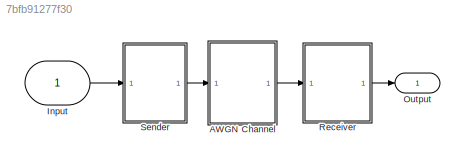
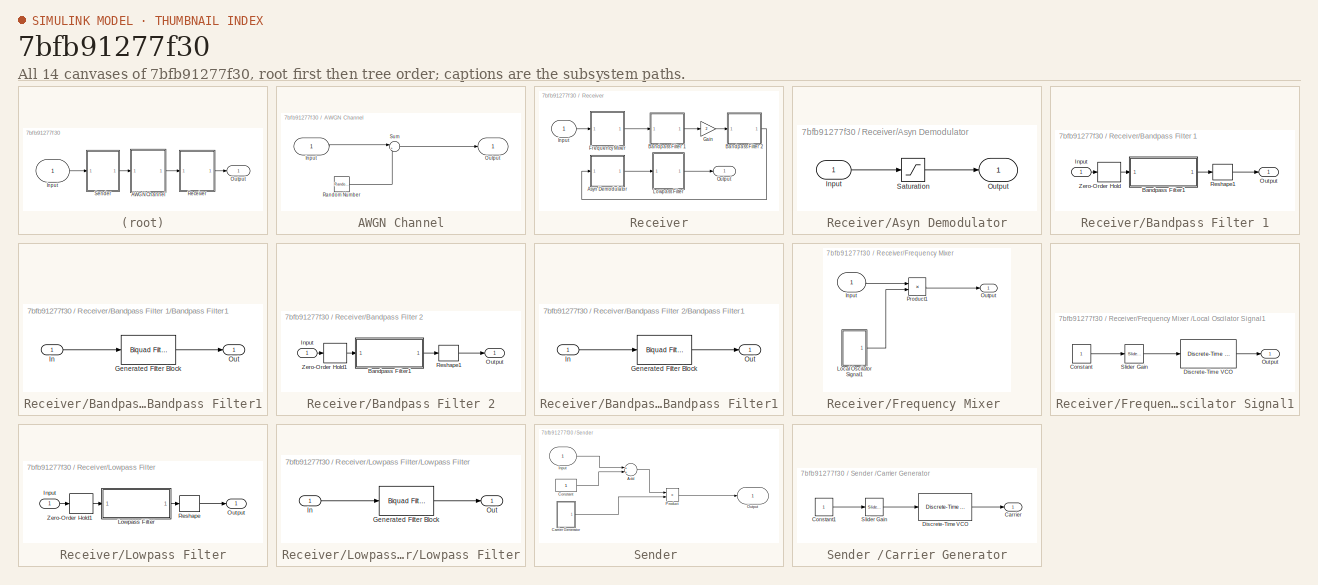
[diagram: thumbnail index - all 14 canvases of the model, root first then tree order]
MODEL slx_7bfb91277f30
KIND model
BLOCK [SubSystem] AWGN Channel
  Ports = [1, 1]
  RequestExecContextInheritance = off
BLOCK [Inport] AWGN Channel/Input
  IconDisplay = Port number
BLOCK [Outport] AWGN Channel/Output
  IconDisplay = Port number
BLOCK [RandomNumber] AWGN Channel/Random Number
  SampleTime = 1/5000000
  Seed = 67
  Variance = 0.01
BLOCK [Sum] AWGN Channel/Sum
  IconShape = round
  InputSameDT = off
  Inputs = |++
  OutDataTypeStr = Inherit: Inherit via internal rule
  Ports = [2, 1]
  SaturateOnIntegerOverflow = off
BLOCK [Inport] Input
  IconDisplay = Port number
BLOCK [Outport] Output
  IconDisplay = Port number
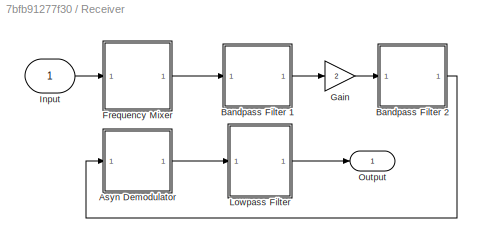
BLOCK [SubSystem] Receiver
  Ports = [1, 1]
  RequestExecContextInheritance = off
BLOCK [SubSystem] Receiver/Asyn Demodulator
  Ports = [1, 1]
  RequestExecContextInheritance = off
BLOCK [Inport] Receiver/Asyn Demodulator/Input
  IconDisplay = Port number
BLOCK [Outport] Receiver/Asyn Demodulator/Output
  IconDisplay = Port number
BLOCK [Saturate] Receiver/Asyn Demodulator/Saturation
  InputPortMap = u0
  LowerLimit = 0
  Ports = [1, 1]
  UpperLimit = inf
BLOCK [SubSystem] Receiver/Bandpass Filter 1
  Ports = [1, 1]
  RequestExecContextInheritance = off
BLOCK [SubSystem] Receiver/Bandpass Filter 1/Bandpass Filter1
  CopyFcn = fdesignblkfcn(gcbh, {'CopyFcn'});
  DialogController = fdesignblkfcn
  InitFcn = fdesignblkfcn(gcbh, {'InitFcn'});
  Ports = [1, 1]
  RequestExecContextInheritance = off
  UserDataPersistent = on
BLOCK [Reference] Receiver/Bandpass Filter 1/Bandpass Filter1/Generated Filter Block  REF=dsparch4/Biquad Filter
  BiQuadCoeffs = [0.01013958648634297 0 -0.01013958648634297 1 -1.6618133812024951 0.98627046054740486;0.0025493781187891492 0 -0.0025493781187891492 1 -1.6514591991218408 0.98607730419032968;0.016304485317952876 0 -0.016304485317952876 1 -1.6744504392878072 0.99677925049276372;0.010019474414157988 0 -0.010019474414157988 1 -1.6562936076737262 0.99669840495107032;0.011567698875754661 0 -0.011567698875754661 1 -1.6...<+297ch>
  CoeffSource = Specify via dialog
  FilterSource = Specify via dialog
  IC = 0
  ICden = 0
  ICnum = 0
  IIRFiltStruct = Direct form II
  InputProcessing = Columns as channels (frame based)
  LockScale = off
  Ports = [1, 1]
  ScaleValueMode = Specify via input port (g)
  ScaleValues = [0.0075209697231768506;1;1;1;1;1;1;1;1]
  SourceBlock = dsparch4/Biquad Filter
  SourceType = Biquad Filter
  Tag = BlockMethodSubSystem
  UserDataPersistent = on
  a0Flag = Warning
  accumFracLength = 30
  accumMode = Same as product output
  accumWordLength = 32
  allowOverrides = on
  denAccumFracLength = 30
  denProdOutputFracLength = 30
  dfiltObjectName = dfilt.df2tsos([1 0.3 0.4],[1 0.1 0.2])
  firstCoeffFracLength = 15
  firstCoeffMode = Same word length as input
  firstCoeffWordLength = 16
  memoryFracLength = 15
  memoryMode = Same as accumulator
  memoryWordLength = 16
  multiplicandFracLength = 30
  multiplicandMode = Same as output
  multiplicandWordLength = 32
  optimizeScaleValues = off
  outputFracLength = 15
  outputMode = Same as accumulator
  outputWordLength = 16
  overflowMode = off
  prodOutputFracLength = 30
  prodOutputMode = Same as input
  prodOutputWordLength = 32
  roundingMode = Floor
  scaleValueFracLength = 14
  secondCoeffFracLength = 15
  secondCoeffMode = Same as numerator
  secondCoeffWordLength = 16
  secondMemoryFracLength = 15
  stageInputFracLength = 15
  stageInputMode = Same as input
  stageInputWordLength = 16
  stageOutputFracLength = 15
  stageOutputMode = Same as section input
  stageOutputWordLength = 16
BLOCK [Inport] Receiver/Bandpass Filter 1/Bandpass Filter1/In
  IconDisplay = Port number
BLOCK [Outport] Receiver/Bandpass Filter 1/Bandpass Filter1/Out
  IconDisplay = Port number
BLOCK [Inport] Receiver/Bandpass Filter 1/Input
  IconDisplay = Port number
BLOCK [Outport] Receiver/Bandpass Filter 1/Output
  IconDisplay = Port number
BLOCK [Reshape] Receiver/Bandpass Filter 1/Reshape1
  Ports = [1, 1]
BLOCK [ZeroOrderHold] Receiver/Bandpass Filter 1/Zero-Order Hold
  SampleTime = -1
BLOCK [SubSystem] Receiver/Bandpass Filter 2
  Ports = [1, 1]
  RequestExecContextInheritance = off
BLOCK [SubSystem] Receiver/Bandpass Filter 2/Bandpass Filter1
  CopyFcn = fdesignblkfcn(gcbh, {'CopyFcn'});
  DialogController = fdesignblkfcn
  InitFcn = fdesignblkfcn(gcbh, {'InitFcn'});
  Ports = [1, 1]
  RequestExecContextInheritance = off
  UserDataPersistent = on
BLOCK [Reference] Receiver/Bandpass Filter 2/Bandpass Filter1/Generated Filter Block  REF=dsparch4/Biquad Filter
  BiQuadCoeffs = [0.01013958648634297 0 -0.01013958648634297 1 -1.6618133812024951 0.98627046054740486;0.0025493781187891492 0 -0.0025493781187891492 1 -1.6514591991218408 0.98607730419032968;0.016304485317952876 0 -0.016304485317952876 1 -1.6744504392878072 0.99677925049276372;0.010019474414157988 0 -0.010019474414157988 1 -1.6562936076737262 0.99669840495107032;0.011567698875754661 0 -0.011567698875754661 1 -1.6...<+297ch>
  CoeffSource = Specify via dialog
  FilterSource = Specify via dialog
  IC = 0
  ICden = 0
  ICnum = 0
  IIRFiltStruct = Direct form II
  InputProcessing = Columns as channels (frame based)
  LockScale = off
  Ports = [1, 1]
  ScaleValueMode = Specify via input port (g)
  ScaleValues = [0.0075209697231768506;1;1;1;1;1;1;1;1]
  SourceBlock = dsparch4/Biquad Filter
  SourceType = Biquad Filter
  Tag = BlockMethodSubSystem
  UserDataPersistent = on
  a0Flag = Warning
  accumFracLength = 30
  accumMode = Same as product output
  accumWordLength = 32
  allowOverrides = on
  denAccumFracLength = 30
  denProdOutputFracLength = 30
  dfiltObjectName = dfilt.df2tsos([1 0.3 0.4],[1 0.1 0.2])
  firstCoeffFracLength = 15
  firstCoeffMode = Same word length as input
  firstCoeffWordLength = 16
  memoryFracLength = 15
  memoryMode = Same as accumulator
  memoryWordLength = 16
  multiplicandFracLength = 30
  multiplicandMode = Same as output
  multiplicandWordLength = 32
  optimizeScaleValues = off
  outputFracLength = 15
  outputMode = Same as accumulator
  outputWordLength = 16
  overflowMode = off
  prodOutputFracLength = 30
  prodOutputMode = Same as input
  prodOutputWordLength = 32
  roundingMode = Floor
  scaleValueFracLength = 14
  secondCoeffFracLength = 15
  secondCoeffMode = Same as numerator
  secondCoeffWordLength = 16
  secondMemoryFracLength = 15
  stageInputFracLength = 15
  stageInputMode = Same as input
  stageInputWordLength = 16
  stageOutputFracLength = 15
  stageOutputMode = Same as section input
  stageOutputWordLength = 16
BLOCK [Inport] Receiver/Bandpass Filter 2/Bandpass Filter1/In
  IconDisplay = Port number
BLOCK [Outport] Receiver/Bandpass Filter 2/Bandpass Filter1/Out
  IconDisplay = Port number
BLOCK [Inport] Receiver/Bandpass Filter 2/Input
  IconDisplay = Port number
BLOCK [Outport] Receiver/Bandpass Filter 2/Output
  IconDisplay = Port number
BLOCK [Reshape] Receiver/Bandpass Filter 2/Reshape1
  Ports = [1, 1]
BLOCK [ZeroOrderHold] Receiver/Bandpass Filter 2/Zero-Order Hold1
  SampleTime = -1
BLOCK [SubSystem] Receiver/Frequency Mixer 
  Ports = [1, 1]
  RequestExecContextInheritance = off
BLOCK [Inport] Receiver/Frequency Mixer /Input
  IconDisplay = Port number
BLOCK [SubSystem] Receiver/Frequency Mixer /Local Oscilator Signal1
  Ports = [0, 1]
  RequestExecContextInheritance = off
BLOCK [Constant] Receiver/Frequency Mixer /Local Oscilator Signal1/Constant
BLOCK [Reference] Receiver/Frequency Mixer /Local Oscilator Signal1/Discrete-Time VCO  REF=commsynccomp2/Discrete-Time
VCO
  Ac = 1
  Fc = 0
  Kc = 1000
  Ph = 0
  Ports = [1, 1]
  SourceBlock = commsynccomp2/Discrete-Time\nVCO
  SourceType = Discrete-Time VCO
  ts = 1/5000000
BLOCK [Outport] Receiver/Frequency Mixer /Local Oscilator Signal1/Output
  IconDisplay = Port number
BLOCK [Reference] Receiver/Frequency Mixer /Local Oscilator Signal1/Slider Gain  REF=simulink/Math
Operations/Slider
Gain
  Ports = [1, 1]
  SourceBlock = simulink/Math\nOperations/Slider\nGain
  SourceType = Slider Gain
  gain = 1257
  high = 2070
  low = 1015
BLOCK [Outport] Receiver/Frequency Mixer /Output
  IconDisplay = Port number
BLOCK [Product] Receiver/Frequency Mixer /Product1
  InputSameDT = off
  OutDataTypeStr = Inherit: Inherit via internal rule
  Ports = [2, 1]
  RndMeth = Floor
  SaturateOnIntegerOverflow = off
BLOCK [Gain] Receiver/Gain
  Gain = 2
  OutDataTypeStr = Inherit: Inherit via internal rule
  ParamDataTypeStr = Inherit: Inherit via internal rule
  SaturateOnIntegerOverflow = off
BLOCK [Inport] Receiver/Input
  IconDisplay = Port number
BLOCK [SubSystem] Receiver/Lowpass Filter
  Ports = [1, 1]
  RequestExecContextInheritance = off
BLOCK [Inport] Receiver/Lowpass Filter/Input
  IconDisplay = Port number
BLOCK [SubSystem] Receiver/Lowpass Filter/Lowpass Filter
  CopyFcn = fdesignblkfcn(gcbh, {'CopyFcn'});
  DialogController = fdesignblkfcn
  InitFcn = fdesignblkfcn(gcbh, {'InitFcn'});
  Ports = [1, 1]
  RequestExecContextInheritance = off
  UserDataPersistent = on
BLOCK [Reference] Receiver/Lowpass Filter/Lowpass Filter/Generated Filter Block  REF=dsparch4/Biquad Filter
  BiQuadCoeffs = [1.1139495474470017e-05 2.2278990948940034e-05 1.1139495474470017e-05 1 -1.9975472496899784 0.99760587630988296;1.708449290031526e-05 3.4168985800630521e-05 1.708449290031526e-05 1 -1.99387457640288 0.99393309523238282;2.1150286544110928e-05 4.2300573088221855e-05 2.1150286544110928e-05 1 -1.9905941002634866 0.99065252281330018;2.3741131754506419e-05 4.7482263509012838e-05 2.3741131754506419e-05 1...<+2357ch>
  CoeffSource = Specify via dialog
  FilterSource = Specify via dialog
  IC = 0
  ICden = 0
  ICnum = 0
  IIRFiltStruct = Direct form II
  InputProcessing = Columns as channels (frame based)
  LockScale = off
  Ports = [1, 1]
  ScaleValueMode = Specify via input port (g)
  ScaleValues = [1.8320818000818615e-05;1;1;1;1;1;1;1;1;1;1;1;1;1;1;1;1;1;1;1;1;1;1;1;1;1]
  SourceBlock = dsparch4/Biquad Filter
  SourceType = Biquad Filter
  Tag = BlockMethodSubSystem
  UserDataPersistent = on
  a0Flag = Warning
  accumFracLength = 30
  accumMode = Same as product output
  accumWordLength = 32
  allowOverrides = on
  denAccumFracLength = 30
  denProdOutputFracLength = 30
  dfiltObjectName = dfilt.df2tsos([1 0.3 0.4],[1 0.1 0.2])
  firstCoeffFracLength = 15
  firstCoeffMode = Same word length as input
  firstCoeffWordLength = 16
  memoryFracLength = 15
  memoryMode = Same as accumulator
  memoryWordLength = 16
  multiplicandFracLength = 30
  multiplicandMode = Same as output
  multiplicandWordLength = 32
  optimizeScaleValues = off
  outputFracLength = 15
  outputMode = Same as accumulator
  outputWordLength = 16
  overflowMode = off
  prodOutputFracLength = 30
  prodOutputMode = Same as input
  prodOutputWordLength = 32
  roundingMode = Floor
  scaleValueFracLength = 14
  secondCoeffFracLength = 15
  secondCoeffMode = Same as numerator
  secondCoeffWordLength = 16
  secondMemoryFracLength = 15
  stageInputFracLength = 15
  stageInputMode = Same as input
  stageInputWordLength = 16
  stageOutputFracLength = 15
  stageOutputMode = Same as section input
  stageOutputWordLength = 16
BLOCK [Inport] Receiver/Lowpass Filter/Lowpass Filter/In
  IconDisplay = Port number
BLOCK [Outport] Receiver/Lowpass Filter/Lowpass Filter/Out
  IconDisplay = Port number
BLOCK [Outport] Receiver/Lowpass Filter/Output
  IconDisplay = Port number
BLOCK [Reshape] Receiver/Lowpass Filter/Reshape
  Ports = [1, 1]
BLOCK [ZeroOrderHold] Receiver/Lowpass Filter/Zero-Order Hold1
  SampleTime = -1
BLOCK [Outport] Receiver/Output
  IconDisplay = Port number
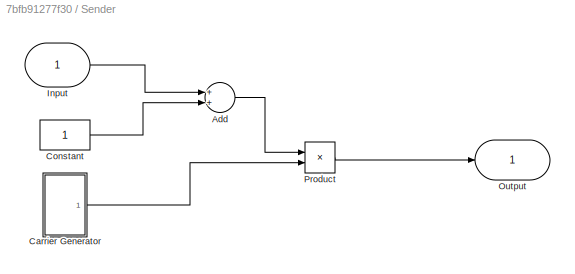
BLOCK [SubSystem] Sender 
  Ports = [1, 1]
  RequestExecContextInheritance = off
BLOCK [Sum] Sender /Add
  InputSameDT = off
  OutDataTypeStr = Inherit: Inherit via internal rule
  Ports = [2, 1]
  SaturateOnIntegerOverflow = off
BLOCK [SubSystem] Sender /Carrier Generator
  Ports = [0, 1]
  RequestExecContextInheritance = off
BLOCK [Outport] Sender /Carrier Generator/Carrier
  IconDisplay = Port number
BLOCK [Constant] Sender /Carrier Generator/Constant1
BLOCK [Reference] Sender /Carrier Generator/Discrete-Time VCO  REF=commsynccomp2/Discrete-Time
VCO
  Ac = 1
  Fc = 0
  Kc = 1000
  Ph = 0
  Ports = [1, 1]
  SourceBlock = commsynccomp2/Discrete-Time\nVCO
  SourceType = Discrete-Time VCO
  ts = 1/5000000
BLOCK [Reference] Sender /Carrier Generator/Slider Gain  REF=simulink/Math
Operations/Slider
Gain
  Ports = [1, 1]
  SourceBlock = simulink/Math\nOperations/Slider\nGain
  SourceType = Slider Gain
  gain = 792
  high = 1605
  low = 550
BLOCK [Constant] Sender /Constant
BLOCK [Inport] Sender /Input
  IconDisplay = Port number
BLOCK [Outport] Sender /Output
  IconDisplay = Port number
BLOCK [Product] Sender /Product
  InputSameDT = off
  OutDataTypeStr = Inherit: Inherit via internal rule
  Ports = [2, 1]
  RndMeth = Floor
  SaturateOnIntegerOverflow = off
LINE AWGN Channel/Input:1 -> AWGN Channel/Sum:1
LINE AWGN Channel/Random Number:1 -> AWGN Channel/Sum:2
LINE AWGN Channel/Sum:1 -> AWGN Channel/Output:1
LINE AWGN Channel:1 -> Receiver:1
LINE Input:1 -> Sender :1
LINE Receiver/Asyn Demodulator/Input:1 -> Receiver/Asyn Demodulator/Saturation:1
LINE Receiver/Asyn Demodulator/Saturation:1 -> Receiver/Asyn Demodulator/Output:1
LINE Receiver/Asyn Demodulator:1 -> Receiver/Lowpass Filter:1
LINE Receiver/Bandpass Filter 1/Bandpass Filter1:1 -> Receiver/Bandpass Filter 1/Reshape1:1
LINE Receiver/Bandpass Filter 1/Input:1 -> Receiver/Bandpass Filter 1/Zero-Order Hold:1
LINE Receiver/Bandpass Filter 1/Reshape1:1 -> Receiver/Bandpass Filter 1/Output:1
LINE Receiver/Bandpass Filter 1/Zero-Order Hold:1 -> Receiver/Bandpass Filter 1/Bandpass Filter1:1
LINE Receiver/Bandpass Filter 1:1 -> Receiver/Gain:1
LINE Receiver/Bandpass Filter 2/Bandpass Filter1:1 -> Receiver/Bandpass Filter 2/Reshape1:1
LINE Receiver/Bandpass Filter 2/Input:1 -> Receiver/Bandpass Filter 2/Zero-Order Hold1:1
LINE Receiver/Bandpass Filter 2/Reshape1:1 -> Receiver/Bandpass Filter 2/Output:1
LINE Receiver/Bandpass Filter 2/Zero-Order Hold1:1 -> Receiver/Bandpass Filter 2/Bandpass Filter1:1
LINE Receiver/Bandpass Filter 2:1 -> Receiver/Asyn Demodulator:1
LINE Receiver/Frequency Mixer /Input:1 -> Receiver/Frequency Mixer /Product1:1
LINE Receiver/Frequency Mixer /Local Oscilator Signal1/Constant:1 -> Receiver/Frequency Mixer /Local Oscilator Signal1/Slider Gain:1
LINE Receiver/Frequency Mixer /Local Oscilator Signal1/Discrete-Time VCO:1 -> Receiver/Frequency Mixer /Local Oscilator Signal1/Output:1
LINE Receiver/Frequency Mixer /Local Oscilator Signal1/Slider Gain:1 -> Receiver/Frequency Mixer /Local Oscilator Signal1/Discrete-Time VCO:1
LINE Receiver/Frequency Mixer /Local Oscilator Signal1:1 -> Receiver/Frequency Mixer /Product1:2
LINE Receiver/Frequency Mixer /Product1:1 -> Receiver/Frequency Mixer /Output:1
LINE Receiver/Frequency Mixer :1 -> Receiver/Bandpass Filter 1:1
LINE Receiver/Gain:1 -> Receiver/Bandpass Filter 2:1
LINE Receiver/Input:1 -> Receiver/Frequency Mixer :1
LINE Receiver/Lowpass Filter/Input:1 -> Receiver/Lowpass Filter/Zero-Order Hold1:1
LINE Receiver/Lowpass Filter/Lowpass Filter:1 -> Receiver/Lowpass Filter/Reshape:1
LINE Receiver/Lowpass Filter/Reshape:1 -> Receiver/Lowpass Filter/Output:1
LINE Receiver/Lowpass Filter/Zero-Order Hold1:1 -> Receiver/Lowpass Filter/Lowpass Filter:1
LINE Receiver/Lowpass Filter:1 -> Receiver/Output:1
LINE Receiver:1 -> Output:1
LINE Sender /Add:1 -> Sender /Product:1
LINE Sender /Carrier Generator/Constant1:1 -> Sender /Carrier Generator/Slider Gain:1
LINE Sender /Carrier Generator/Discrete-Time VCO:1 -> Sender /Carrier Generator/Carrier:1
LINE Sender /Carrier Generator/Slider Gain:1 -> Sender /Carrier Generator/Discrete-Time VCO:1
LINE Sender /Carrier Generator:1 -> Sender /Product:2
LINE Sender /Constant:1 -> Sender /Add:2
LINE Sender /Input:1 -> Sender /Add:1
LINE Sender /Product:1 -> Sender /Output:1
LINE Sender :1 -> AWGN Channel:1
